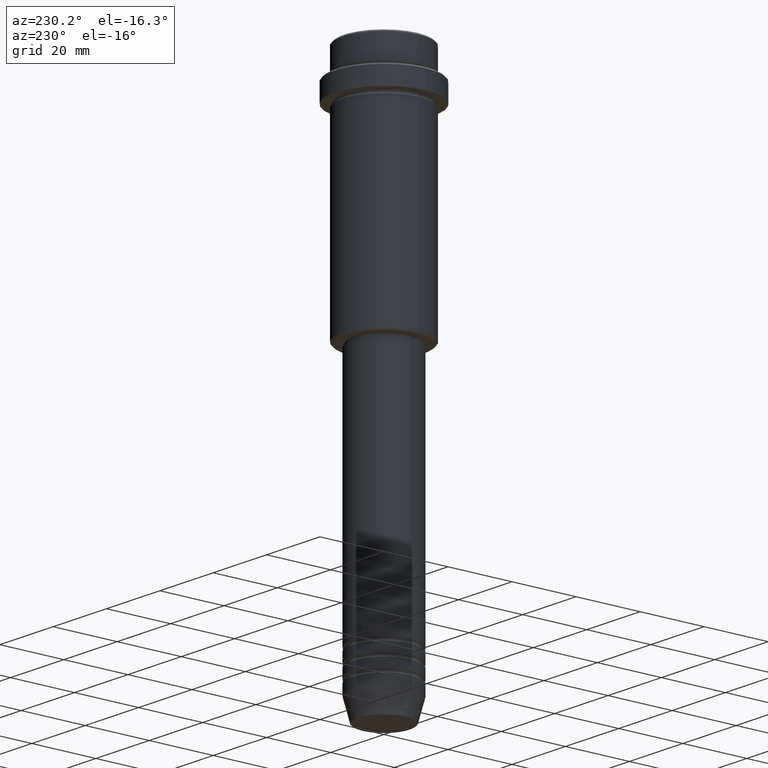
[diagram: clean part render]
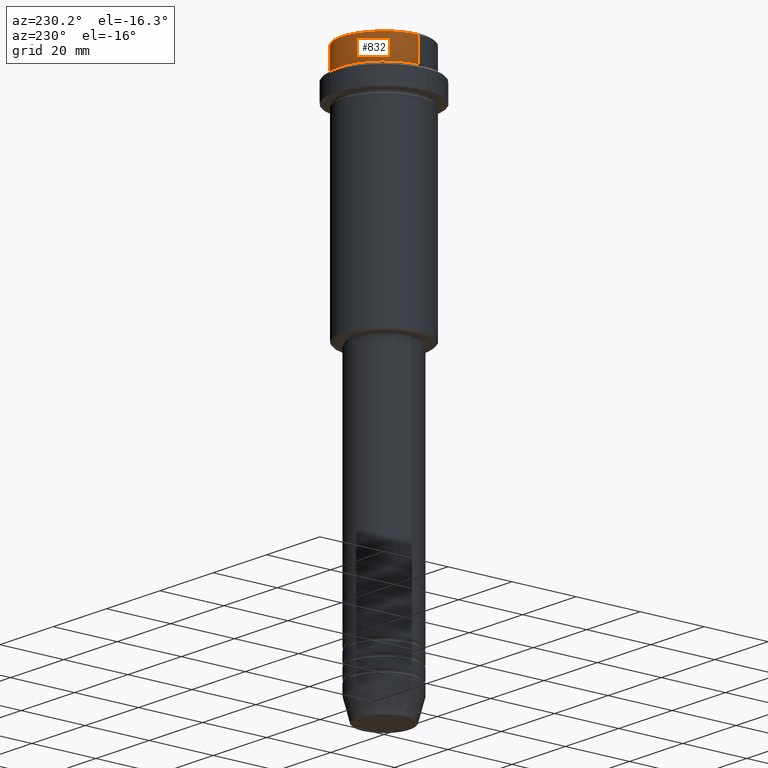
[diagram: same view with one face highlighted and labeled with its STEP entity id]
A machine part, auxiliary view. The second image highlights one B-rep face of the part: STEP entity #832.
In plain terms, the highlighted cylindrical surface (partial cylindrical patch) has radius 13 mm, axis along (-0, -0, 1).
Its self-contained STEP definition (entity closure, byte-faithful):
#18 = CARTESIAN_POINT ( 'NONE',  ( 12.99999999999999822, 0.000000000000000000, 0.000000000000000000 ) ) ;
#31 = DIRECTION ( 'NONE',  ( -0.000000000000000000, -0.000000000000000000, 1.000000000000000000 ) ) ;
#118 = ORIENTED_EDGE ( 'NONE', *, *, #767, .F. ) ;
#133 = CIRCLE ( 'NONE', #582, 12.99999999999999822 ) ;
#149 = EDGE_LOOP ( 'NONE', ( #718, #940, #1187, #118 ) ) ;
#212 = DIRECTION ( 'NONE',  ( 1.000000000000000000, 0.000000000000000000, 0.000000000000000000 ) ) ;
#324 = EDGE_CURVE ( 'NONE', #933, #1146, #662, .T. ) ;
#349 = CARTESIAN_POINT ( 'NONE',  ( 0.000000000000000000, 0.000000000000000000, -7.999999999999998224 ) ) ;
#419 = DIRECTION ( 'NONE',  ( 0.000000000000000000, 0.000000000000000000, -1.000000000000000000 ) ) ;
#432 = CARTESIAN_POINT ( 'NONE',  ( -12.99999999999999822, 1.592040838891558898E-15, -7.999999999999998224 ) ) ;
#483 = VERTEX_POINT ( 'NONE', #595 ) ;
#535 = DIRECTION ( 'NONE',  ( -0.000000000000000000, -0.000000000000000000, 1.000000000000000000 ) ) ;
#545 = DIRECTION ( 'NONE',  ( 1.000000000000000000, 0.000000000000000000, 0.000000000000000000 ) ) ;
#552 = DIRECTION ( 'NONE',  ( 1.000000000000000000, 0.000000000000000000, 0.000000000000000000 ) ) ;
#573 = CARTESIAN_POINT ( 'NONE',  ( -12.99999999999999822, 1.592040838891558898E-15, -0.4999999999999483746 ) ) ;
#582 = AXIS2_PLACEMENT_3D ( 'NONE', #349, #896, #552 ) ;
#595 = CARTESIAN_POINT ( 'NONE',  ( 12.99999999999999822, 0.000000000000000000, -7.999999999999998224 ) ) ;
#653 = AXIS2_PLACEMENT_3D ( 'NONE', #976, #763, #545 ) ;
#656 = CARTESIAN_POINT ( 'NONE',  ( -12.99999999999999822, 1.592040838891558898E-15, 0.000000000000000000 ) ) ;
#662 = CIRCLE ( 'NONE', #1277, 12.99999999999999822 ) ;
#700 = VECTOR ( 'NONE', #535, 1000.000000000000000 ) ;
#718 = ORIENTED_EDGE ( 'NONE', *, *, #861, .T. ) ;
#723 = VERTEX_POINT ( 'NONE', #432 ) ;
#763 = DIRECTION ( 'NONE',  ( -0.000000000000000000, -0.000000000000000000, 1.000000000000000000 ) ) ;
#767 = EDGE_CURVE ( 'NONE', #483, #1146, #1004, .T. ) ;
#832 = ADVANCED_FACE ( 'NONE', ( #902 ), #1319, .T. ) ;
#861 = EDGE_CURVE ( 'NONE', #483, #723, #133, .T. ) ;
#896 = DIRECTION ( 'NONE',  ( -0.000000000000000000, -0.000000000000000000, 1.000000000000000000 ) ) ;
#902 = FACE_OUTER_BOUND ( 'NONE', #149, .T. ) ;
#933 = VERTEX_POINT ( 'NONE', #573 ) ;
#940 = ORIENTED_EDGE ( 'NONE', *, *, #1270, .T. ) ;
#976 = CARTESIAN_POINT ( 'NONE',  ( 0.000000000000000000, 0.000000000000000000, 0.000000000000000000 ) ) ;
#1004 = LINE ( 'NONE', #18, #1240 ) ;
#1071 = CARTESIAN_POINT ( 'NONE',  ( 0.000000000000000000, 0.000000000000000000, -0.4999999999999483746 ) ) ;
#1146 = VERTEX_POINT ( 'NONE', #1193 ) ;
#1187 = ORIENTED_EDGE ( 'NONE', *, *, #324, .T. ) ;
#1193 = CARTESIAN_POINT ( 'NONE',  ( 12.99999999999999822, 0.000000000000000000, -0.4999999999999483746 ) ) ;
#1240 = VECTOR ( 'NONE', #31, 1000.000000000000000 ) ;
#1270 = EDGE_CURVE ( 'NONE', #723, #933, #1307, .T. ) ;
#1277 = AXIS2_PLACEMENT_3D ( 'NONE', #1071, #419, #212 ) ;
#1307 = LINE ( 'NONE', #656, #700 ) ;
#1319 = CYLINDRICAL_SURFACE ( 'NONE', #653, 12.99999999999999822 ) ;